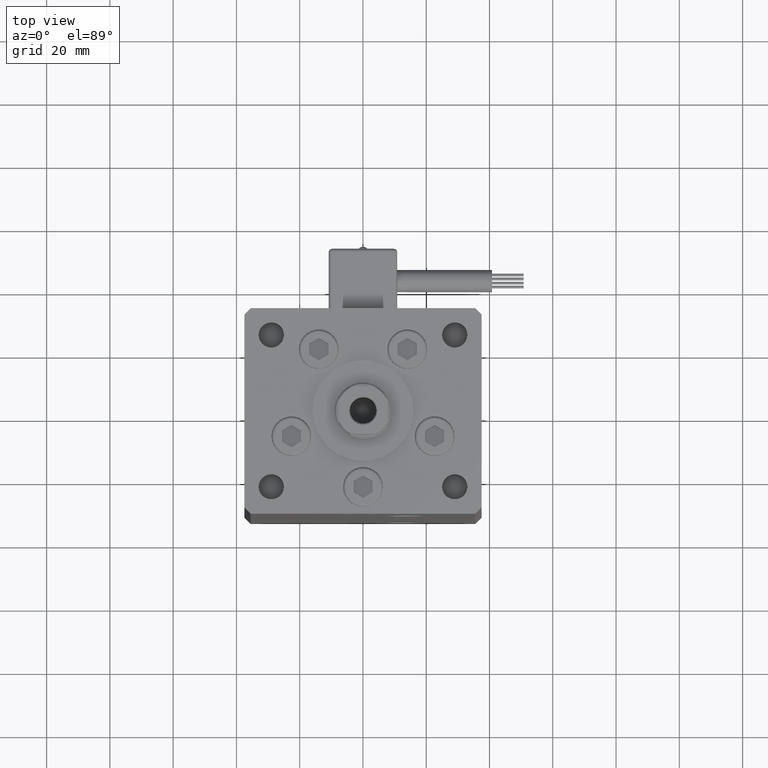
[diagram: clean part render]
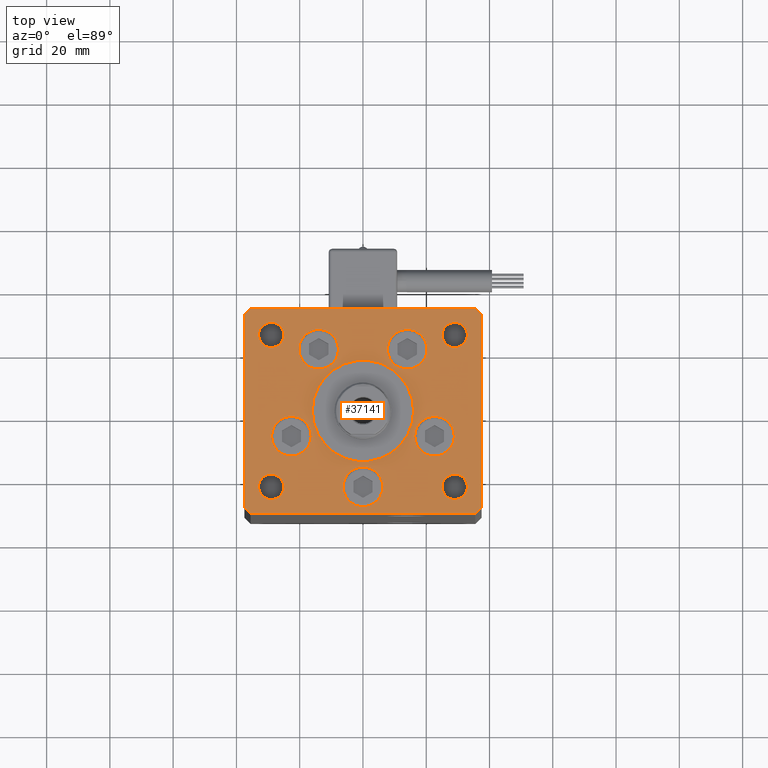
[diagram: same view with one face highlighted and labeled with its STEP entity id]
A machine part, top view. The second image highlights one B-rep face of the part: STEP entity #37141.
In plain terms, the highlighted planar face has unit normal (0, 0, 1).
Its self-contained STEP definition (entity closure, byte-faithful):
#48 = CARTESIAN_POINT ( 'NONE',  ( 16.37741699796953299, -8.000000000000000000, 0.000000000000000000 ) ) ;
#86 = CARTESIAN_POINT ( 'NONE',  ( 6.250000000000000000, -24.00000000000001066, 0.000000000000000000 ) ) ;
#486 = EDGE_CURVE ( 'NONE', #5426, #3977, #15442, .T. ) ;
#908 = FACE_BOUND ( 'NONE', #22914, .T. ) ;
#930 = VERTEX_POINT ( 'NONE', #44300 ) ;
#1134 = CARTESIAN_POINT ( 'NONE',  ( 33.00000000000000000, -23.99999999999999645, 0.000000000000000000 ) ) ;
#1199 = CARTESIAN_POINT ( 'NONE',  ( 37.50000000000000711, -30.49999999999992895, 0.000000000000000000 ) ) ;
#1396 = DIRECTION ( 'NONE',  ( 0.000000000000000000, 0.000000000000000000, 1.000000000000000000 ) ) ;
#1589 = ORIENTED_EDGE ( 'NONE', *, *, #16364, .F. ) ;
#1648 = ORIENTED_EDGE ( 'NONE', *, *, #9698, .F. ) ;
#1884 = LINE ( 'NONE', #19166, #39093 ) ;
#1976 = VERTEX_POINT ( 'NONE', #47467 ) ;
#2732 = CIRCLE ( 'NONE', #22350, 4.000000000000000000 ) ;
#2892 = CIRCLE ( 'NONE', #32328, 3.999999999999996447 ) ;
#3097 = DIRECTION ( 'NONE',  ( 0.000000000000000000, 0.000000000000000000, 1.000000000000000000 ) ) ;
#3267 = DIRECTION ( 'NONE',  ( 1.000000000000000000, 0.000000000000000000, 0.000000000000000000 ) ) ;
#3390 = DIRECTION ( 'NONE',  ( 1.000000000000000000, 0.000000000000000000, 0.000000000000000000 ) ) ;
#3454 = CARTESIAN_POINT ( 'NONE',  ( 20.24106857963324302, 19.50000000000000000, 0.000000000000000000 ) ) ;
#3977 = VERTEX_POINT ( 'NONE', #40097 ) ;
#4590 = EDGE_LOOP ( 'NONE', ( #51273, #52217 ) ) ;
#5180 = DIRECTION ( 'NONE',  ( 0.000000000000000000, 0.000000000000000000, 1.000000000000000000 ) ) ;
#5379 = VERTEX_POINT ( 'NONE', #35424 ) ;
#5407 = DIRECTION ( 'NONE',  ( 0.000000000000000000, 0.000000000000000000, 1.000000000000000000 ) ) ;
#5426 = VERTEX_POINT ( 'NONE', #22584 ) ;
#5614 = AXIS2_PLACEMENT_3D ( 'NONE', #31011, #27632, #14806 ) ;
#5650 = AXIS2_PLACEMENT_3D ( 'NONE', #37695, #3097, #3390 ) ;
#5869 = CIRCLE ( 'NONE', #17454, 6.250000000000001776 ) ;
#6082 = CARTESIAN_POINT ( 'NONE',  ( 37.50000000000000711, 30.50000000000001421, 0.000000000000000000 ) ) ;
#6745 = DIRECTION ( 'NONE',  ( 0.7071067811865512365, -0.7071067811865439090, 0.000000000000000000 ) ) ;
#6860 = CIRCLE ( 'NONE', #22930, 4.000000000000000000 ) ;
#7128 = ORIENTED_EDGE ( 'NONE', *, *, #28688, .T. ) ;
#7158 = CARTESIAN_POINT ( 'NONE',  ( 29.00000000000000000, 24.00000000000000355, 0.000000000000000000 ) ) ;
#7323 = VECTOR ( 'NONE', #18205, 1000.000000000000000 ) ;
#7349 = EDGE_CURVE ( 'NONE', #930, #47447, #10243, .T. ) ;
#7420 = DIRECTION ( 'NONE',  ( 0.000000000000000000, 0.000000000000000000, 1.000000000000000000 ) ) ;
#7458 = DIRECTION ( 'NONE',  ( -1.000000000000000000, 0.000000000000000000, 0.000000000000000000 ) ) ;
#7768 = VERTEX_POINT ( 'NONE', #42981 ) ;
#7844 = EDGE_LOOP ( 'NONE', ( #24642, #1589 ) ) ;
#7923 = DIRECTION ( 'NONE',  ( 1.000000000000000000, 0.000000000000000000, 0.000000000000000000 ) ) ;
#8241 = CIRCLE ( 'NONE', #45624, 6.250000000000000000 ) ;
#8448 = VERTEX_POINT ( 'NONE', #12348 ) ;
#8560 = VECTOR ( 'NONE', #6745, 1000.000000000000000 ) ;
#8565 = AXIS2_PLACEMENT_3D ( 'NONE', #17911, #13735, #52492 ) ;
#8691 = CARTESIAN_POINT ( 'NONE',  ( -35.50000000000000711, 32.49999999999997868, 0.000000000000000000 ) ) ;
#8805 = ORIENTED_EDGE ( 'NONE', *, *, #27573, .F. ) ;
#9098 = DIRECTION ( 'NONE',  ( 1.000000000000000000, 0.000000000000000000, 0.000000000000000000 ) ) ;
#9367 = CARTESIAN_POINT ( 'NONE',  ( 29.00000000000000000, 24.00000000000000355, 0.000000000000000000 ) ) ;
#9554 = FACE_BOUND ( 'NONE', #7844, .T. ) ;
#9556 = DIRECTION ( 'NONE',  ( -1.000000000000000000, -1.954618001100627573E-16, 0.000000000000000000 ) ) ;
#9698 = EDGE_CURVE ( 'NONE', #41329, #21971, #5869, .T. ) ;
#10243 = CIRCLE ( 'NONE', #43215, 16.00000000000000355 ) ;
#10463 = LINE ( 'NONE', #48385, #17750 ) ;
#10863 = VERTEX_POINT ( 'NONE', #26190 ) ;
#11309 = AXIS2_PLACEMENT_3D ( 'NONE', #53838, #5407, #49659 ) ;
#11336 = DIRECTION ( 'NONE',  ( -0.000000000000000000, -0.000000000000000000, -1.000000000000000000 ) ) ;
#11383 = DIRECTION ( 'NONE',  ( -0.000000000000000000, -0.000000000000000000, -1.000000000000000000 ) ) ;
#11396 = ORIENTED_EDGE ( 'NONE', *, *, #27886, .F. ) ;
#11403 = CIRCLE ( 'NONE', #21234, 4.000000000000000000 ) ;
#11527 = AXIS2_PLACEMENT_3D ( 'NONE', #9367, #5180, #30026 ) ;
#11972 = ORIENTED_EDGE ( 'NONE', *, *, #40045, .T. ) ;
#12348 = CARTESIAN_POINT ( 'NONE',  ( 35.50000000000001421, -32.49999999999992184, 0.000000000000000000 ) ) ;
#12558 = CARTESIAN_POINT ( 'NONE',  ( 22.62741699796953299, -8.000000000000000000, 0.000000000000000000 ) ) ;
#12641 = AXIS2_PLACEMENT_3D ( 'NONE', #7158, #24182, #3267 ) ;
#12726 = ORIENTED_EDGE ( 'NONE', *, *, #7349, .F. ) ;
#12919 = CARTESIAN_POINT ( 'NONE',  ( 35.50000000000000000, 32.49999999999999289, 0.000000000000000000 ) ) ;
#13393 = VERTEX_POINT ( 'NONE', #37550 ) ;
#13427 = VERTEX_POINT ( 'NONE', #14557 ) ;
#13469 = CARTESIAN_POINT ( 'NONE',  ( -29.00000000000000000, -23.99999999999999645, 0.000000000000000000 ) ) ;
#13637 = CIRCLE ( 'NONE', #5614, 6.250000000000000000 ) ;
#13735 = DIRECTION ( 'NONE',  ( -0.000000000000000000, 0.000000000000000000, 1.000000000000000000 ) ) ;
#14257 = LINE ( 'NONE', #43544, #16554 ) ;
#14366 = DIRECTION ( 'NONE',  ( -0.7071067811865524577, -0.7071067811865426878, 0.000000000000000000 ) ) ;
#14380 = AXIS2_PLACEMENT_3D ( 'NONE', #35961, #1396, #35422 ) ;
#14557 = CARTESIAN_POINT ( 'NONE',  ( -32.99999999999999289, -23.99999999999999645, 0.000000000000000000 ) ) ;
#14779 = DIRECTION ( 'NONE',  ( 0.000000000000000000, 0.000000000000000000, 1.000000000000000000 ) ) ;
#14806 = DIRECTION ( 'NONE',  ( 1.000000000000000000, 0.000000000000000000, 0.000000000000000000 ) ) ;
#15235 = CIRCLE ( 'NONE', #30440, 6.250000000000001776 ) ;
#15442 = CIRCLE ( 'NONE', #22588, 6.250000000000001776 ) ;
#15786 = EDGE_CURVE ( 'NONE', #1976, #38883, #11403, .T. ) ;
#15899 = CIRCLE ( 'NONE', #49778, 6.250000000000000000 ) ;
#15933 = CIRCLE ( 'NONE', #11527, 4.000000000000000000 ) ;
#15962 = EDGE_LOOP ( 'NONE', ( #28432, #53894 ) ) ;
#16227 = LINE ( 'NONE', #41347, #8560 ) ;
#16340 = DIRECTION ( 'NONE',  ( 1.000000000000000000, 0.000000000000000000, 0.000000000000000000 ) ) ;
#16364 = EDGE_CURVE ( 'NONE', #7768, #37474, #15899, .T. ) ;
#16554 = VECTOR ( 'NONE', #43811, 1000.000000000000000 ) ;
#16677 = ORIENTED_EDGE ( 'NONE', *, *, #42705, .F. ) ;
#17061 = EDGE_CURVE ( 'NONE', #47982, #8448, #1884, .T. ) ;
#17440 = EDGE_CURVE ( 'NONE', #10863, #27652, #15933, .T. ) ;
#17446 = VERTEX_POINT ( 'NONE', #47037 ) ;
#17454 = AXIS2_PLACEMENT_3D ( 'NONE', #12558, #25372, #25661 ) ;
#17706 = CARTESIAN_POINT ( 'NONE',  ( -33.00000000000000000, 24.00000000000000711, 0.000000000000000000 ) ) ;
#17750 = VECTOR ( 'NONE', #14366, 1000.000000000000000 ) ;
#17911 = CARTESIAN_POINT ( 'NONE',  ( 0.000000000000000000, 0.000000000000000000, 0.000000000000000000 ) ) ;
#17998 = VERTEX_POINT ( 'NONE', #45386 ) ;
#18205 = DIRECTION ( 'NONE',  ( 0.000000000000000000, 1.000000000000000000, 0.000000000000000000 ) ) ;
#18292 = DIRECTION ( 'NONE',  ( -1.000000000000000000, 0.000000000000000000, 0.000000000000000000 ) ) ;
#18735 = FACE_BOUND ( 'NONE', #37966, .T. ) ;
#19139 = ORIENTED_EDGE ( 'NONE', *, *, #26465, .T. ) ;
#19166 = CARTESIAN_POINT ( 'NONE',  ( -35.50000000000001421, -32.50000000000000711, 0.000000000000000000 ) ) ;
#20037 = VERTEX_POINT ( 'NONE', #8691 ) ;
#20113 = CARTESIAN_POINT ( 'NONE',  ( 0.000000000000000000, -6.938893903907228378E-15, 0.000000000000000000 ) ) ;
#20234 = CARTESIAN_POINT ( 'NONE',  ( 0.000000000000000000, -6.938893903907228378E-15, 0.000000000000000000 ) ) ;
#20292 = EDGE_CURVE ( 'NONE', #27652, #10863, #44678, .T. ) ;
#21051 = CARTESIAN_POINT ( 'NONE',  ( 13.99106857963324124, 19.50000000000000000, 0.000000000000000000 ) ) ;
#21234 = AXIS2_PLACEMENT_3D ( 'NONE', #43303, #31035, #44121 ) ;
#21544 = ORIENTED_EDGE ( 'NONE', *, *, #23270, .F. ) ;
#21670 = CARTESIAN_POINT ( 'NONE',  ( -7.741068579633241242, 19.50000000000000000, 0.000000000000000000 ) ) ;
#21850 = CIRCLE ( 'NONE', #47696, 6.250000000000001776 ) ;
#21936 = VECTOR ( 'NONE', #44008, 1000.000000000000000 ) ;
#21964 = ORIENTED_EDGE ( 'NONE', *, *, #28724, .F. ) ;
#21971 = VERTEX_POINT ( 'NONE', #48 ) ;
#22350 = AXIS2_PLACEMENT_3D ( 'NONE', #28054, #11336, #53718 ) ;
#22584 = CARTESIAN_POINT ( 'NONE',  ( -16.37741699796953299, -8.000000000000000000, 0.000000000000000000 ) ) ;
#22588 = AXIS2_PLACEMENT_3D ( 'NONE', #51215, #38670, #9098 ) ;
#22914 = EDGE_LOOP ( 'NONE', ( #21964, #45492 ) ) ;
#22924 = FACE_BOUND ( 'NONE', #46221, .T. ) ;
#22930 = AXIS2_PLACEMENT_3D ( 'NONE', #37040, #11383, #7458 ) ;
#23068 = VERTEX_POINT ( 'NONE', #21670 ) ;
#23245 = AXIS2_PLACEMENT_3D ( 'NONE', #20234, #41157, #28323 ) ;
#23270 = EDGE_CURVE ( 'NONE', #47447, #930, #24130, .T. ) ;
#23534 = CARTESIAN_POINT ( 'NONE',  ( -25.00000000000000355, -23.99999999999999645, 0.000000000000000000 ) ) ;
#23576 = EDGE_CURVE ( 'NONE', #36809, #17998, #2732, .T. ) ;
#23633 = VERTEX_POINT ( 'NONE', #40349 ) ;
#23686 = ORIENTED_EDGE ( 'NONE', *, *, #20292, .F. ) ;
#24130 = CIRCLE ( 'NONE', #23245, 16.00000000000000355 ) ;
#24182 = DIRECTION ( 'NONE',  ( 0.000000000000000000, 0.000000000000000000, 1.000000000000000000 ) ) ;
#24377 = DIRECTION ( 'NONE',  ( 0.000000000000000000, 0.000000000000000000, 1.000000000000000000 ) ) ;
#24422 = EDGE_CURVE ( 'NONE', #23068, #17446, #26840, .T. ) ;
#24642 = ORIENTED_EDGE ( 'NONE', *, *, #38101, .F. ) ;
#24722 = ORIENTED_EDGE ( 'NONE', *, *, #25121, .F. ) ;
#25121 = EDGE_CURVE ( 'NONE', #21971, #41329, #15235, .T. ) ;
#25211 = ORIENTED_EDGE ( 'NONE', *, *, #41180, .T. ) ;
#25372 = DIRECTION ( 'NONE',  ( 0.000000000000000000, 0.000000000000000000, 1.000000000000000000 ) ) ;
#25419 = CARTESIAN_POINT ( 'NONE',  ( -35.50000000000001421, -32.50000000000000711, 0.000000000000000000 ) ) ;
#25661 = DIRECTION ( 'NONE',  ( 1.000000000000000000, 0.000000000000000000, 0.000000000000000000 ) ) ;
#25817 = ORIENTED_EDGE ( 'NONE', *, *, #39555, .T. ) ;
#25841 = EDGE_LOOP ( 'NONE', ( #45981, #11396 ) ) ;
#26190 = CARTESIAN_POINT ( 'NONE',  ( 24.99999999999999645, 24.00000000000000355, 0.000000000000000000 ) ) ;
#26281 = FACE_BOUND ( 'NONE', #53357, .T. ) ;
#26306 = EDGE_LOOP ( 'NONE', ( #25817, #37786, #25211, #19139, #11972, #7128, #42268, #36125 ) ) ;
#26465 = EDGE_CURVE ( 'NONE', #51811, #23633, #43599, .T. ) ;
#26564 = PLANE ( 'NONE',  #8565 ) ;
#26840 = CIRCLE ( 'NONE', #14380, 6.250000000000000000 ) ;
#27259 = DIRECTION ( 'NONE',  ( 0.000000000000000000, 0.000000000000000000, 1.000000000000000000 ) ) ;
#27385 = FACE_OUTER_BOUND ( 'NONE', #26306, .T. ) ;
#27573 = EDGE_CURVE ( 'NONE', #33707, #48866, #8241, .T. ) ;
#27632 = DIRECTION ( 'NONE',  ( 0.000000000000000000, 0.000000000000000000, 1.000000000000000000 ) ) ;
#27652 = VERTEX_POINT ( 'NONE', #52534 ) ;
#27886 = EDGE_CURVE ( 'NONE', #17446, #23068, #13637, .T. ) ;
#28051 = CIRCLE ( 'NONE', #38755, 6.250000000000000000 ) ;
#28054 = CARTESIAN_POINT ( 'NONE',  ( -29.00000000000000000, 24.00000000000000711, 0.000000000000000000 ) ) ;
#28323 = DIRECTION ( 'NONE',  ( 1.000000000000000000, 0.000000000000000000, 0.000000000000000000 ) ) ;
#28432 = ORIENTED_EDGE ( 'NONE', *, *, #43507, .T. ) ;
#28688 = EDGE_CURVE ( 'NONE', #13393, #20037, #34671, .T. ) ;
#28724 = EDGE_CURVE ( 'NONE', #38290, #13427, #2892, .T. ) ;
#29317 = DIRECTION ( 'NONE',  ( 1.000000000000000000, 0.000000000000000000, 0.000000000000000000 ) ) ;
#29813 = EDGE_CURVE ( 'NONE', #13427, #38290, #38594, .T. ) ;
#30026 = DIRECTION ( 'NONE',  ( 1.000000000000000000, 0.000000000000000000, 0.000000000000000000 ) ) ;
#30440 = AXIS2_PLACEMENT_3D ( 'NONE', #48252, #14779, #44062 ) ;
#30480 = DIRECTION ( 'NONE',  ( 1.000000000000000000, 0.000000000000000000, 0.000000000000000000 ) ) ;
#30643 = ORIENTED_EDGE ( 'NONE', *, *, #17440, .F. ) ;
#31011 = CARTESIAN_POINT ( 'NONE',  ( -13.99106857963324124, 19.50000000000000000, 0.000000000000000000 ) ) ;
#31035 = DIRECTION ( 'NONE',  ( -0.000000000000000000, -0.000000000000000000, -1.000000000000000000 ) ) ;
#31112 = CARTESIAN_POINT ( 'NONE',  ( 7.741068579633241242, 19.50000000000000000, 0.000000000000000000 ) ) ;
#31286 = VERTEX_POINT ( 'NONE', #46547 ) ;
#31472 = LINE ( 'NONE', #6082, #53981 ) ;
#31722 = DIRECTION ( 'NONE',  ( 1.000000000000000000, 0.000000000000000000, 0.000000000000000000 ) ) ;
#32267 = DIRECTION ( 'NONE',  ( 1.000000000000000000, 1.172770800660376149E-15, 0.000000000000000000 ) ) ;
#32328 = AXIS2_PLACEMENT_3D ( 'NONE', #13469, #33847, #30480 ) ;
#32958 = DIRECTION ( 'NONE',  ( 0.000000000000000000, 0.000000000000000000, 1.000000000000000000 ) ) ;
#33110 = CARTESIAN_POINT ( 'NONE',  ( -16.00000000000000355, -6.938893903907228378E-15, 0.000000000000000000 ) ) ;
#33707 = VERTEX_POINT ( 'NONE', #3454 ) ;
#33847 = DIRECTION ( 'NONE',  ( 0.000000000000000000, 0.000000000000000000, 1.000000000000000000 ) ) ;
#33887 = DIRECTION ( 'NONE',  ( 1.000000000000000000, 0.000000000000000000, 0.000000000000000000 ) ) ;
#34670 = FACE_BOUND ( 'NONE', #4590, .T. ) ;
#34671 = LINE ( 'NONE', #12919, #45668 ) ;
#35201 = FACE_BOUND ( 'NONE', #52018, .T. ) ;
#35381 = LINE ( 'NONE', #40122, #21936 ) ;
#35422 = DIRECTION ( 'NONE',  ( 1.000000000000000000, 0.000000000000000000, 0.000000000000000000 ) ) ;
#35424 = CARTESIAN_POINT ( 'NONE',  ( -37.50000000000000000, -30.50000000000004263, 0.000000000000000000 ) ) ;
#35961 = CARTESIAN_POINT ( 'NONE',  ( -13.99106857963324124, 19.50000000000000000, 0.000000000000000000 ) ) ;
#36125 = ORIENTED_EDGE ( 'NONE', *, *, #50059, .T. ) ;
#36809 = VERTEX_POINT ( 'NONE', #17706 ) ;
#37040 = CARTESIAN_POINT ( 'NONE',  ( 29.00000000000000355, -23.99999999999999645, 0.000000000000000000 ) ) ;
#37141 = ADVANCED_FACE ( 'NONE', ( #22924, #43296, #35201, #18735, #9554, #39951, #34670, #26281, #908, #27385, #48300 ), #26564, .T. ) ;
#37474 = VERTEX_POINT ( 'NONE', #86 ) ;
#37550 = CARTESIAN_POINT ( 'NONE',  ( 35.50000000000000000, 32.49999999999999289, 0.000000000000000000 ) ) ;
#37695 = CARTESIAN_POINT ( 'NONE',  ( -29.00000000000000000, -23.99999999999999645, 0.000000000000000000 ) ) ;
#37786 = ORIENTED_EDGE ( 'NONE', *, *, #17061, .T. ) ;
#37966 = EDGE_LOOP ( 'NONE', ( #1648, #24722 ) ) ;
#38034 = CIRCLE ( 'NONE', #11309, 6.250000000000000000 ) ;
#38076 = DIRECTION ( 'NONE',  ( 0.000000000000000000, 0.000000000000000000, 1.000000000000000000 ) ) ;
#38101 = EDGE_CURVE ( 'NONE', #37474, #7768, #28051, .T. ) ;
#38290 = VERTEX_POINT ( 'NONE', #23534 ) ;
#38393 = EDGE_CURVE ( 'NONE', #3977, #5426, #21850, .T. ) ;
#38594 = CIRCLE ( 'NONE', #5650, 3.999999999999996447 ) ;
#38670 = DIRECTION ( 'NONE',  ( 0.000000000000000000, 0.000000000000000000, 1.000000000000000000 ) ) ;
#38755 = AXIS2_PLACEMENT_3D ( 'NONE', #39824, #27259, #31722 ) ;
#38883 = VERTEX_POINT ( 'NONE', #1134 ) ;
#39093 = VECTOR ( 'NONE', #32267, 1000.000000000000000 ) ;
#39243 = CARTESIAN_POINT ( 'NONE',  ( -29.00000000000000000, 24.00000000000000711, 0.000000000000000000 ) ) ;
#39504 = DIRECTION ( 'NONE',  ( -0.000000000000000000, -0.000000000000000000, -1.000000000000000000 ) ) ;
#39555 = EDGE_CURVE ( 'NONE', #5379, #47982, #16227, .T. ) ;
#39824 = CARTESIAN_POINT ( 'NONE',  ( 0.000000000000000000, -24.00000000000001066, 0.000000000000000000 ) ) ;
#39951 = FACE_BOUND ( 'NONE', #49731, .T. ) ;
#40045 = EDGE_CURVE ( 'NONE', #23633, #13393, #31472, .T. ) ;
#40097 = CARTESIAN_POINT ( 'NONE',  ( -28.87741699796953654, -8.000000000000000000, 0.000000000000000000 ) ) ;
#40122 = CARTESIAN_POINT ( 'NONE',  ( 35.50000000000001421, -32.49999999999992184, 0.000000000000000000 ) ) ;
#40349 = CARTESIAN_POINT ( 'NONE',  ( 37.50000000000000711, 30.50000000000001421, 0.000000000000000000 ) ) ;
#41157 = DIRECTION ( 'NONE',  ( 0.000000000000000000, 0.000000000000000000, 1.000000000000000000 ) ) ;
#41180 = EDGE_CURVE ( 'NONE', #8448, #51811, #35381, .T. ) ;
#41329 = VERTEX_POINT ( 'NONE', #51155 ) ;
#41347 = CARTESIAN_POINT ( 'NONE',  ( -37.50000000000000000, -30.50000000000004263, 0.000000000000000000 ) ) ;
#41558 = ORIENTED_EDGE ( 'NONE', *, *, #486, .F. ) ;
#42268 = ORIENTED_EDGE ( 'NONE', *, *, #47667, .T. ) ;
#42705 = EDGE_CURVE ( 'NONE', #48866, #33707, #38034, .T. ) ;
#42981 = CARTESIAN_POINT ( 'NONE',  ( -6.250000000000000000, -24.00000000000001066, 0.000000000000000000 ) ) ;
#43215 = AXIS2_PLACEMENT_3D ( 'NONE', #20113, #32958, #29317 ) ;
#43296 = FACE_BOUND ( 'NONE', #25841, .T. ) ;
#43303 = CARTESIAN_POINT ( 'NONE',  ( 29.00000000000000355, -23.99999999999999645, 0.000000000000000000 ) ) ;
#43507 = EDGE_CURVE ( 'NONE', #38883, #1976, #6860, .T. ) ;
#43544 = CARTESIAN_POINT ( 'NONE',  ( -37.50000000000001421, 30.50000000000000000, 0.000000000000000000 ) ) ;
#43599 = LINE ( 'NONE', #1199, #7323 ) ;
#43811 = DIRECTION ( 'NONE',  ( 2.275047181608926165E-16, -1.000000000000000000, 0.000000000000000000 ) ) ;
#44008 = DIRECTION ( 'NONE',  ( 0.7071067811865463515, 0.7071067811865487940, 0.000000000000000000 ) ) ;
#44062 = DIRECTION ( 'NONE',  ( 1.000000000000000000, 0.000000000000000000, 0.000000000000000000 ) ) ;
#44121 = DIRECTION ( 'NONE',  ( -1.000000000000000000, 0.000000000000000000, 0.000000000000000000 ) ) ;
#44300 = CARTESIAN_POINT ( 'NONE',  ( 16.00000000000000355, -4.979459025271462852E-15, 0.000000000000000000 ) ) ;
#44678 = CIRCLE ( 'NONE', #12641, 4.000000000000000000 ) ;
#45056 = AXIS2_PLACEMENT_3D ( 'NONE', #39243, #39504, #18292 ) ;
#45299 = CARTESIAN_POINT ( 'NONE',  ( -22.62741699796953299, -8.000000000000000000, 0.000000000000000000 ) ) ;
#45386 = CARTESIAN_POINT ( 'NONE',  ( -25.00000000000000000, 24.00000000000000711, 0.000000000000000000 ) ) ;
#45492 = ORIENTED_EDGE ( 'NONE', *, *, #29813, .F. ) ;
#45624 = AXIS2_PLACEMENT_3D ( 'NONE', #21051, #38076, #33887 ) ;
#45665 = ORIENTED_EDGE ( 'NONE', *, *, #38393, .F. ) ;
#45668 = VECTOR ( 'NONE', #9556, 1000.000000000000000 ) ;
#45981 = ORIENTED_EDGE ( 'NONE', *, *, #24422, .F. ) ;
#46221 = EDGE_LOOP ( 'NONE', ( #21544, #12726 ) ) ;
#46547 = CARTESIAN_POINT ( 'NONE',  ( -37.50000000000001421, 30.50000000000000000, 0.000000000000000000 ) ) ;
#47037 = CARTESIAN_POINT ( 'NONE',  ( -20.24106857963324302, 19.50000000000000000, 0.000000000000000000 ) ) ;
#47447 = VERTEX_POINT ( 'NONE', #33110 ) ;
#47467 = CARTESIAN_POINT ( 'NONE',  ( 25.00000000000000355, -23.99999999999999645, 0.000000000000000000 ) ) ;
#47667 = EDGE_CURVE ( 'NONE', #20037, #31286, #10463, .T. ) ;
#47696 = AXIS2_PLACEMENT_3D ( 'NONE', #45299, #24377, #7923 ) ;
#47982 = VERTEX_POINT ( 'NONE', #25419 ) ;
#48208 = CARTESIAN_POINT ( 'NONE',  ( 37.50000000000000711, -30.49999999999992895, 0.000000000000000000 ) ) ;
#48252 = CARTESIAN_POINT ( 'NONE',  ( 22.62741699796953299, -8.000000000000000000, 0.000000000000000000 ) ) ;
#48300 = FACE_BOUND ( 'NONE', #15962, .T. ) ;
#48385 = CARTESIAN_POINT ( 'NONE',  ( -35.50000000000000711, 32.49999999999997868, 0.000000000000000000 ) ) ;
#48474 = DIRECTION ( 'NONE',  ( -0.7071067811865524577, 0.7071067811865426878, 0.000000000000000000 ) ) ;
#48866 = VERTEX_POINT ( 'NONE', #31112 ) ;
#49659 = DIRECTION ( 'NONE',  ( 1.000000000000000000, 0.000000000000000000, 0.000000000000000000 ) ) ;
#49731 = EDGE_LOOP ( 'NONE', ( #41558, #45665 ) ) ;
#49778 = AXIS2_PLACEMENT_3D ( 'NONE', #54558, #7420, #16340 ) ;
#50059 = EDGE_CURVE ( 'NONE', #31286, #5379, #14257, .T. ) ;
#50619 = EDGE_CURVE ( 'NONE', #17998, #36809, #54865, .T. ) ;
#51155 = CARTESIAN_POINT ( 'NONE',  ( 28.87741699796953654, -8.000000000000000000, 0.000000000000000000 ) ) ;
#51215 = CARTESIAN_POINT ( 'NONE',  ( -22.62741699796953299, -8.000000000000000000, 0.000000000000000000 ) ) ;
#51273 = ORIENTED_EDGE ( 'NONE', *, *, #50619, .T. ) ;
#51811 = VERTEX_POINT ( 'NONE', #48208 ) ;
#52018 = EDGE_LOOP ( 'NONE', ( #8805, #16677 ) ) ;
#52217 = ORIENTED_EDGE ( 'NONE', *, *, #23576, .T. ) ;
#52492 = DIRECTION ( 'NONE',  ( 1.000000000000000000, 0.000000000000000000, 0.000000000000000000 ) ) ;
#52534 = CARTESIAN_POINT ( 'NONE',  ( 33.00000000000000000, 24.00000000000000355, 0.000000000000000000 ) ) ;
#53357 = EDGE_LOOP ( 'NONE', ( #23686, #30643 ) ) ;
#53718 = DIRECTION ( 'NONE',  ( -1.000000000000000000, 0.000000000000000000, 0.000000000000000000 ) ) ;
#53838 = CARTESIAN_POINT ( 'NONE',  ( 13.99106857963324124, 19.50000000000000000, 0.000000000000000000 ) ) ;
#53894 = ORIENTED_EDGE ( 'NONE', *, *, #15786, .T. ) ;
#53981 = VECTOR ( 'NONE', #48474, 1000.000000000000000 ) ;
#54558 = CARTESIAN_POINT ( 'NONE',  ( 0.000000000000000000, -24.00000000000001066, 0.000000000000000000 ) ) ;
#54865 = CIRCLE ( 'NONE', #45056, 4.000000000000000000 ) ;